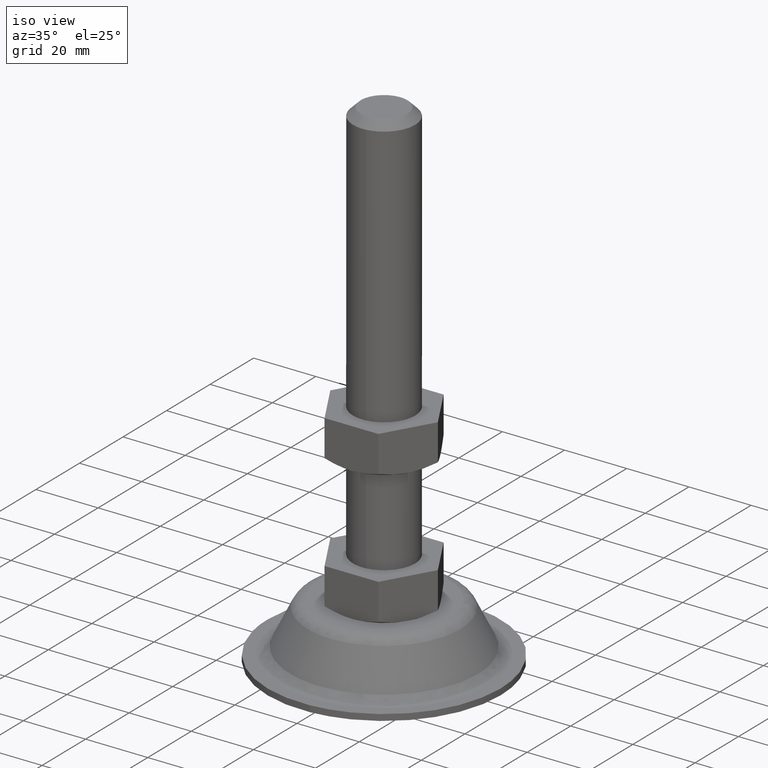
[diagram: clean part render]
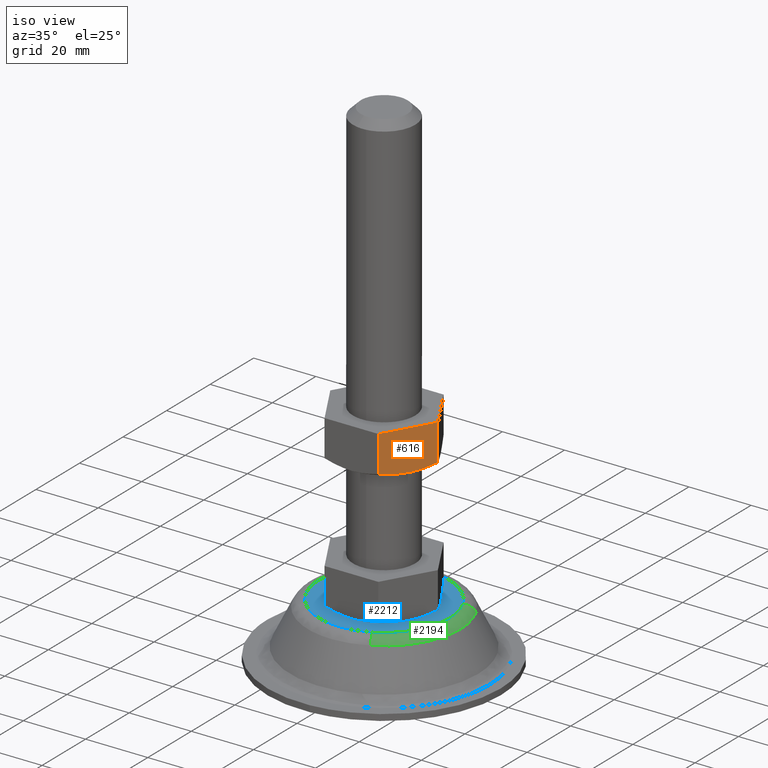
[diagram: same view with three faces highlighted in distinct colors, each labeled with its STEP entity id]
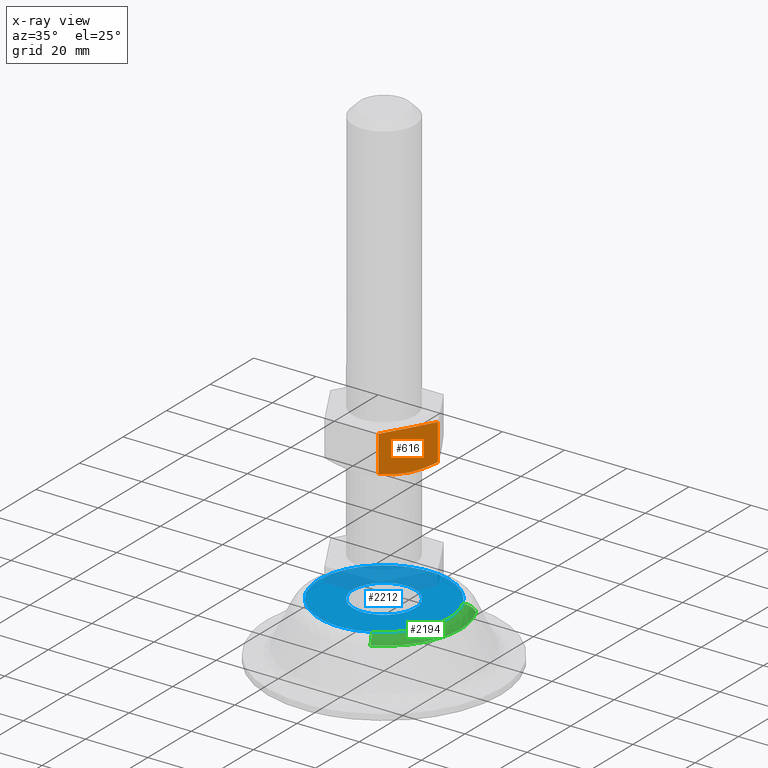
[diagram: x-ray of the same camera — body ghosted, the three highlighted faces saturated]
A machine part, iso view with three faces highlighted in distinct colors.
The next image is the same camera in x-ray (body ghosted, the three faces saturated) — at least one of them is partly hidden behind the body in this view.
Their STEP definitions:

[orange] entity #616 — the highlighted face is a freeform B-spline surface patch.
#140=CARTESIAN_POINT('',(17.300000000000001,-5.809094E-016,62.339745951231102));
#141=VERTEX_POINT('',#140);
#163=CARTESIAN_POINT('',(13.338581102288110,-6.861379078656141,61.011768809013986));
#164=VERTEX_POINT('',#163);
#165=CARTESIAN_POINT('',(13.338581102288110,-6.861379078656141,61.011768809013986));
#166=CARTESIAN_POINT('',(13.397354962315241,-6.759579518715170,61.015059326108997));
#167=CARTESIAN_POINT('',(13.456091402132120,-6.657845020252039,61.019142851758083));
#168=CARTESIAN_POINT('',(13.698904168786330,-6.237280969842774,61.039291775102221));
#169=CARTESIAN_POINT('',(13.882431816609079,-5.919401757831059,61.062310992847841));
#170=CARTESIAN_POINT('',(14.431178601310810,-4.968944442084222,61.153576613393597));
#171=CARTESIAN_POINT('',(14.794557260691620,-4.339554138900038,61.244083217684413));
#172=CARTESIAN_POINT('',(15.878224604632850,-2.462587232488472,61.593839847269493));
#173=CARTESIAN_POINT('',(16.592069824133262,-1.226171038170609,61.931022273626631));
#174=CARTESIAN_POINT('',(17.300000000000001,-5.809094E-016,62.339745951231102));
#175=B_SPLINE_CURVE_WITH_KNOTS('',3,(#165,#166,#167,#168,#169,#170,#171,#172,#173,#174),.UNSPECIFIED.,.F.,.U.,(4,2,2,2,4),(0.542597772120075,0.562500000000000,0.625000000000000,0.750000000000000,1.0),.UNSPECIFIED.);
#176=EDGE_CURVE('',#164,#141,#175,.T.);
#226=CARTESIAN_POINT('',(8.639746000000001,-15.0,62.345671394023498));
#227=VERTEX_POINT('',#226);
#228=CARTESIAN_POINT('',(8.639746000000001,-15.0,62.345671394023498));
#229=CARTESIAN_POINT('',(9.346698966340197,-13.775521538386331,61.936786780818018));
#230=CARTESIAN_POINT('',(10.058822484335881,-12.542087418563151,61.599588998314907));
#231=CARTESIAN_POINT('',(11.138194585494009,-10.672560090915271,61.248891436497040));
#232=CARTESIAN_POINT('',(11.499854347525391,-10.046147005286279,61.157905752206368));
#233=CARTESIAN_POINT('',(12.227406586928540,-8.785989555972790,61.034618634017583));
#234=CARTESIAN_POINT('',(12.593302747371339,-8.152238813022072,61.002368263856532));
#235=CARTESIAN_POINT('',(13.053511370126760,-7.355134092845105,61.001408450569599));
#236=CARTESIAN_POINT('',(13.145694399844590,-7.195468401080483,61.003175605669902));
#237=CARTESIAN_POINT('',(13.271545779525029,-6.977487416318749,61.008274798689961));
#238=CARTESIAN_POINT('',(13.305069486354570,-6.919422652578204,61.009892972552493));
#239=CARTESIAN_POINT('',(13.338581102288110,-6.861379078656141,61.011768809013986));
#240=B_SPLINE_CURVE_WITH_KNOTS('',3,(#228,#229,#230,#231,#232,#233,#234,#235,#236,#237,#238,#239),.UNSPECIFIED.,.F.,.U.,(4,2,2,2,2,4),(0.0,0.250000000000000,0.375000000000000,0.500000000000000,0.531250000000000,0.542597772120075),.UNSPECIFIED.);
#241=EDGE_CURVE('',#227,#164,#240,.T.);
#520=CARTESIAN_POINT('',(8.639746000000001,-15.0,74.0));
#521=VERTEX_POINT('',#520);
#527=CARTESIAN_POINT('',(17.300000000000001,0.0,74.0));
#528=VERTEX_POINT('',#527);
#529=CARTESIAN_POINT('',(17.300000000000001,0.0,74.0));
#530=CARTESIAN_POINT('',(8.639746000000001,-15.0,74.0));
#531=QUASI_UNIFORM_CURVE('',1,(#529,#530),.UNSPECIFIED.,.F.,.U.);
#532=EDGE_CURVE('',#528,#521,#531,.T.);
#591=CARTESIAN_POINT('',(8.639746000000001,-15.0,74.0));
#592=CARTESIAN_POINT('',(8.639746000000001,-15.0,62.345671394023498));
#593=QUASI_UNIFORM_CURVE('',1,(#591,#592),.UNSPECIFIED.,.F.,.U.);
#594=EDGE_CURVE('',#521,#227,#593,.T.);
#600=CARTESIAN_POINT('',(8.207166279129453,-15.749250058145799,60.352484429921603));
#601=CARTESIAN_POINT('',(17.732579256298280,0.749249253483117,60.352484429921603));
#602=CARTESIAN_POINT('',(8.207166279129453,-15.749250058145799,74.649263054041953));
#603=CARTESIAN_POINT('',(17.732579256298280,0.749249253483117,74.649263054041953));
#604=B_SPLINE_SURFACE_WITH_KNOTS('',1,1,((#600,#602),(#601,#603)),.UNSPECIFIED.,.F.,.F.,.U.,(2,2),(2,2),(0.0,19.050826016775130),(0.0,14.296778624120360),.UNSPECIFIED.);
#605=ORIENTED_EDGE('',*,*,#594,.T.);
#606=ORIENTED_EDGE('',*,*,#241,.T.);
#607=ORIENTED_EDGE('',*,*,#176,.T.);
#608=CARTESIAN_POINT('',(17.300000000000001,0.0,74.0));
#609=CARTESIAN_POINT('',(17.300000000000001,-5.809094E-016,62.339745951231102));
#610=QUASI_UNIFORM_CURVE('',1,(#608,#609),.UNSPECIFIED.,.F.,.U.);
#611=EDGE_CURVE('',#528,#141,#610,.T.);
#612=ORIENTED_EDGE('',*,*,#611,.F.);
#613=ORIENTED_EDGE('',*,*,#532,.T.);
#614=EDGE_LOOP('',(#605,#606,#607,#612,#613));
#615=FACE_OUTER_BOUND('',#614,.T.);
#616=ADVANCED_FACE('',(#615),#604,.T.);

[blue] entity #2212 — the highlighted face is a freeform B-spline surface patch.
#741=CARTESIAN_POINT('',(-1.180342346694433,9.930095263621585,18.0));
#742=VERTEX_POINT('',#741);
#743=CARTESIAN_POINT('',(10.0,0.0,18.0));
#744=VERTEX_POINT('',#743);
#745=CARTESIAN_POINT('',(-1.180342346694433,9.930095263621585,18.0));
#746=CARTESIAN_POINT('',(-0.592241196647291,10.0,18.0));
#747=CARTESIAN_POINT('',(0.0,10.0,18.0));
#748=CARTESIAN_POINT('',(10.000000000000002,10.000000000000002,18.000000000000007));
#749=CARTESIAN_POINT('',(10.0,0.0,18.0));
#757=(BOUNDED_CURVE()B_SPLINE_CURVE(2,(#745,#746,#747,#748,#749),.UNSPECIFIED.,.F.,.U.)B_SPLINE_CURVE_WITH_KNOTS((3,2,3),(0.229562473511327,0.250000000000000,0.500000000000000),.UNSPECIFIED.)CURVE()GEOMETRIC_REPRESENTATION_ITEM()RATIONAL_B_SPLINE_CURVE((0.956026754179423,0.976055948328589,1.0,0.707106781186548,1.0))REPRESENTATION_ITEM(''));
#758=EDGE_CURVE('',#742,#744,#757,.T.);
#799=CARTESIAN_POINT('',(0.610485395544084,-9.981347984206710,18.0));
#800=VERTEX_POINT('',#799);
#806=CARTESIAN_POINT('',(10.0,0.0,18.0));
#807=CARTESIAN_POINT('',(10.0,-9.407060668687699,18.000000000000007));
#808=CARTESIAN_POINT('',(0.610485395544084,-9.981347984206710,18.000000000000004));
#816=(BOUNDED_CURVE()B_SPLINE_CURVE(2,(#806,#807,#808),.UNSPECIFIED.,.F.,.U.)B_SPLINE_CURVE_WITH_KNOTS((3,3),(0.500000000000000,0.739332962235208),.UNSPECIFIED.)CURVE()GEOMETRIC_REPRESENTATION_ITEM()RATIONAL_B_SPLINE_CURVE((1.0,0.719603993291086,0.976072041658713))REPRESENTATION_ITEM(''));
#817=EDGE_CURVE('',#744,#800,#816,.T.);
#840=CARTESIAN_POINT('',(-10.0,0.0,18.0));
#841=VERTEX_POINT('',#840);
#842=CARTESIAN_POINT('',(-10.0,0.0,18.0));
#843=CARTESIAN_POINT('',(-9.999999999999998,8.881745259285166,18.000000000000004));
#844=CARTESIAN_POINT('',(-1.180342346694433,9.930095263621585,17.999999999999996));
#852=(BOUNDED_CURVE()B_SPLINE_CURVE(2,(#842,#843,#844),.UNSPECIFIED.,.F.,.U.)B_SPLINE_CURVE_WITH_KNOTS((3,3),(0.0,0.229562473511327),.UNSPECIFIED.)CURVE()GEOMETRIC_REPRESENTATION_ITEM()RATIONAL_B_SPLINE_CURVE((1.0,0.731050832857959,0.956026754179423))REPRESENTATION_ITEM(''));
#853=EDGE_CURVE('',#841,#742,#852,.T.);
#855=CARTESIAN_POINT('',(0.610485395544084,-9.981347984206710,18.0));
#856=CARTESIAN_POINT('',(0.305527633181951,-9.999999999999998,17.999999999999996));
#857=CARTESIAN_POINT('',(0.0,-10.0,18.0));
#858=CARTESIAN_POINT('',(-10.000000000000002,-10.000000000000002,18.000000000000007));
#859=CARTESIAN_POINT('',(-10.0,0.0,18.0));
#867=(BOUNDED_CURVE()B_SPLINE_CURVE(2,(#855,#856,#857,#858,#859),.UNSPECIFIED.,.F.,.U.)B_SPLINE_CURVE_WITH_KNOTS((3,2,3),(0.739332962235209,0.750000000000000,1.0),.UNSPECIFIED.)CURVE()GEOMETRIC_REPRESENTATION_ITEM()RATIONAL_B_SPLINE_CURVE((0.976072041658715,0.987502787895462,1.0,0.707106781186548,1.0))REPRESENTATION_ITEM(''));
#868=EDGE_CURVE('',#800,#841,#867,.T.);
#2074=CARTESIAN_POINT('',(9.388559233720365,-18.715872616396350,18.000000000000099));
#2075=VERTEX_POINT('',#2074);
#2076=CARTESIAN_POINT('',(-20.938694608125552,0.0,18.0));
#2077=VERTEX_POINT('',#2076);
#2078=CARTESIAN_POINT('',(9.388559233720365,-18.715872616396350,18.000000000000099));
#2079=CARTESIAN_POINT('',(4.957415710968405,-20.938694608125545,18.000000000000011));
#2080=CARTESIAN_POINT('',(0.0,-20.938694608125552,18.0));
#2081=CARTESIAN_POINT('',(-20.938694608125555,-20.938694608125555,18.000000000000007));
#2082=CARTESIAN_POINT('',(-20.938694608125552,0.0,18.0));
#2090=(BOUNDED_CURVE()B_SPLINE_CURVE(2,(#2078,#2079,#2080,#2081,#2082),.UNSPECIFIED.,.F.,.U.)B_SPLINE_CURVE_WITH_KNOTS((3,2,3),(0.673769062107955,0.750000000000000,1.0),.UNSPECIFIED.)CURVE()GEOMETRIC_REPRESENTATION_ITEM()RATIONAL_B_SPLINE_CURVE((0.875845342755623,0.910689900910522,1.0,0.707106781186548,1.0))REPRESENTATION_ITEM(''));
#2091=EDGE_CURVE('',#2075,#2077,#2090,.T.);
#2093=CARTESIAN_POINT('',(18.715872616023500,9.388559233505411,18.000000000000099));
#2094=VERTEX_POINT('',#2093);
#2095=CARTESIAN_POINT('',(-20.938694608125552,0.0,18.0));
#2096=CARTESIAN_POINT('',(-20.938694608125555,20.938694608125555,18.000000000000007));
#2097=CARTESIAN_POINT('',(0.0,20.938694608125552,18.0));
#2098=CARTESIAN_POINT('',(12.921906577954934,20.938694608125548,18.000000000000011));
#2099=CARTESIAN_POINT('',(18.715872616023496,9.388559233505411,18.000000000000099));
#2107=(BOUNDED_CURVE()B_SPLINE_CURVE(2,(#2095,#2096,#2097,#2098,#2099),.UNSPECIFIED.,.F.,.U.)B_SPLINE_CURVE_WITH_KNOTS((3,2,3),(0.0,0.250000000000000,0.423769062108323),.UNSPECIFIED.)CURVE()GEOMETRIC_REPRESENTATION_ITEM()RATIONAL_B_SPLINE_CURVE((1.0,0.707106781186548,1.0,0.796416880275594,0.875845342755960))REPRESENTATION_ITEM(''));
#2108=EDGE_CURVE('',#2077,#2094,#2107,.T.);
#2160=CARTESIAN_POINT('',(20.938694608125552,0.0,18.0));
#2161=VERTEX_POINT('',#2160);
#2162=CARTESIAN_POINT('',(20.938694608125552,0.0,18.0));
#2163=CARTESIAN_POINT('',(20.938694608125548,-12.921906577920389,18.000000000000004));
#2164=CARTESIAN_POINT('',(9.388559233720365,-18.715872616396346,18.000000000000107));
#2172=(BOUNDED_CURVE()B_SPLINE_CURVE(2,(#2162,#2163,#2164),.UNSPECIFIED.,.F.,.U.)B_SPLINE_CURVE_WITH_KNOTS((3,3),(0.500000000000000,0.673769062107954),.UNSPECIFIED.)CURVE()GEOMETRIC_REPRESENTATION_ITEM()RATIONAL_B_SPLINE_CURVE((1.0,0.796416880276027,0.875845342755622))REPRESENTATION_ITEM(''));
#2173=EDGE_CURVE('',#2161,#2075,#2172,.T.);
#2179=CARTESIAN_POINT('',(18.715872616023493,9.388559233505411,18.000000000000103));
#2180=CARTESIAN_POINT('',(20.938694608125555,4.957415710942052,18.000000000000004));
#2181=CARTESIAN_POINT('',(20.938694608125552,0.0,18.0));
#2189=(BOUNDED_CURVE()B_SPLINE_CURVE(2,(#2179,#2180,#2181),.UNSPECIFIED.,.F.,.U.)B_SPLINE_CURVE_WITH_KNOTS((3,3),(0.423769062108324,0.500000000000000),.UNSPECIFIED.)CURVE()GEOMETRIC_REPRESENTATION_ITEM()RATIONAL_B_SPLINE_CURVE((0.875845342755960,0.910689900910954,1.0))REPRESENTATION_ITEM(''));
#2190=EDGE_CURVE('',#2094,#2161,#2189,.T.);
#2195=CARTESIAN_POINT('',(-23.030469575580369,-23.028712848525242,18.0));
#2196=CARTESIAN_POINT('',(23.030468077928219,-23.028712848525242,18.0));
#2197=CARTESIAN_POINT('',(-23.030469575580369,23.016810248588751,18.0));
#2198=CARTESIAN_POINT('',(23.030468077928219,23.016810248588751,18.0));
#2199=B_SPLINE_SURFACE_WITH_KNOTS('',1,1,((#2195,#2197),(#2196,#2198)),.UNSPECIFIED.,.F.,.F.,.U.,(2,2),(2,2),(0.0,46.060937653508589),(0.0,46.045523097113993),.UNSPECIFIED.);
#2200=ORIENTED_EDGE('',*,*,#2091,.F.);
#2201=ORIENTED_EDGE('',*,*,#2173,.F.);
#2202=ORIENTED_EDGE('',*,*,#2190,.F.);
#2203=ORIENTED_EDGE('',*,*,#2108,.F.);
#2204=EDGE_LOOP('',(#2200,#2201,#2202,#2203));
#2205=FACE_OUTER_BOUND('',#2204,.T.);
#2206=ORIENTED_EDGE('',*,*,#817,.T.);
#2207=ORIENTED_EDGE('',*,*,#868,.T.);
#2208=ORIENTED_EDGE('',*,*,#853,.T.);
#2209=ORIENTED_EDGE('',*,*,#758,.T.);
#2210=EDGE_LOOP('',(#2206,#2207,#2208,#2209));
#2211=FACE_BOUND('',#2210,.T.);
#2212=ADVANCED_FACE('',(#2205,#2211),#2199,.T.);

[green] entity #2194 — the highlighted face is a freeform B-spline surface patch.
#1387=CARTESIAN_POINT('',(21.925249911059961,10.998499066044729,15.762949531500899));
#1388=VERTEX_POINT('',#1387);
#1402=CARTESIAN_POINT('',(24.529238988803549,0.0,15.762949531433700));
#1403=VERTEX_POINT('',#1402);
#1404=CARTESIAN_POINT('',(21.925249911059964,10.998499066044726,15.762949531500906));
#1405=CARTESIAN_POINT('',(24.529238988803552,5.807507917940813,15.762949531433705));
#1406=CARTESIAN_POINT('',(24.529238988803549,0.0,15.762949531433700));
#1414=(BOUNDED_CURVE()B_SPLINE_CURVE(2,(#1404,#1405,#1406),.UNSPECIFIED.,.F.,.U.)B_SPLINE_CURVE_WITH_KNOTS((3,3),(0.423769062115468,0.500000000000000),.UNSPECIFIED.)CURVE()GEOMETRIC_REPRESENTATION_ITEM()RATIONAL_B_SPLINE_CURVE((0.875845342762491,0.910689900919324,1.0))REPRESENTATION_ITEM(''));
#1415=EDGE_CURVE('',#1388,#1403,#1414,.T.);
#1417=CARTESIAN_POINT('',(10.998499066039679,-21.925249911026910,15.762949531565670));
#1418=VERTEX_POINT('',#1417);
#1419=CARTESIAN_POINT('',(24.529238988803549,0.0,15.762949531433700));
#1420=CARTESIAN_POINT('',(24.529238988803556,-15.137740942776292,15.762949531433710));
#1421=CARTESIAN_POINT('',(10.998499066039679,-21.925249911026910,15.762949531565672));
#1429=(BOUNDED_CURVE()B_SPLINE_CURVE(2,(#1419,#1420,#1421),.UNSPECIFIED.,.F.,.U.)B_SPLINE_CURVE_WITH_KNOTS((3,3),(0.500000000000000,0.673769062115336),.UNSPECIFIED.)CURVE()GEOMETRIC_REPRESENTATION_ITEM()RATIONAL_B_SPLINE_CURVE((1.0,0.796416880267377,0.875845342762371))REPRESENTATION_ITEM(''));
#1430=EDGE_CURVE('',#1403,#1418,#1429,.T.);
#2074=CARTESIAN_POINT('',(9.388559233720365,-18.715872616396350,18.000000000000099));
#2075=VERTEX_POINT('',#2074);
#2093=CARTESIAN_POINT('',(18.715872616023500,9.388559233505411,18.000000000000099));
#2094=VERTEX_POINT('',#2093);
#2110=CARTESIAN_POINT('',(18.715872616023496,9.388559233505411,18.000000000000096));
#2111=CARTESIAN_POINT('',(20.943466164081698,10.506000797222542,17.999999989052817));
#2112=CARTESIAN_POINT('',(21.925249911059961,10.998499066044726,15.762949531500904));
#2120=(BOUNDED_CURVE()B_SPLINE_CURVE(2,(#2110,#2111,#2112),.UNSPECIFIED.,.F.,.U.)B_SPLINE_CURVE_WITH_KNOTS((3,3),(-1.657824825603967,-0.347170207494934),.UNSPECIFIED.)CURVE()GEOMETRIC_REPRESENTATION_ITEM()RATIONAL_B_SPLINE_CURVE((0.909224136844491,0.771255055557697,0.908176502123469))REPRESENTATION_ITEM(''));
#2121=EDGE_CURVE('',#2094,#1388,#2120,.T.);
#2127=CARTESIAN_POINT('',(9.388559233720365,-18.715872616396350,18.000000000000099));
#2128=CARTESIAN_POINT('',(10.506000797295503,-20.943466164227132,17.999999988517445));
#2129=CARTESIAN_POINT('',(10.998499066039679,-21.925249911026917,15.762949531565667));
#2137=(BOUNDED_CURVE()B_SPLINE_CURVE(2,(#2127,#2128,#2129),.UNSPECIFIED.,.F.,.U.)B_SPLINE_CURVE_WITH_KNOTS((3,3),(-1.657824825337588,-0.347170207539613),.UNSPECIFIED.)CURVE()GEOMETRIC_REPRESENTATION_ITEM()RATIONAL_B_SPLINE_CURVE((0.909224136788408,0.771255055590228,0.908176502114134))REPRESENTATION_ITEM(''));
#2138=EDGE_CURVE('',#2075,#1418,#2137,.T.);
#2143=CARTESIAN_POINT('',(18.528652608911848,9.294642899871809,17.994512284984971));
#2144=CARTESIAN_POINT('',(27.823295508783655,-9.234009709040036,17.994512284984971));
#2145=CARTESIAN_POINT('',(9.294642899871809,-18.528652608911848,17.994512284984971));
#2146=CARTESIAN_POINT('',(21.022028934068988,10.545410726679879,18.140782316382250));
#2147=CARTESIAN_POINT('',(31.567439660748860,-10.476618207389112,18.140782316382243));
#2148=CARTESIAN_POINT('',(10.545410726679879,-21.022028934068988,18.140782316382250));
#2149=CARTESIAN_POINT('',(22.003449988207599,11.037727055620422,15.572285105118571));
#2150=CARTESIAN_POINT('',(33.041177043828014,-10.965722932587171,15.572285105118565));
#2151=CARTESIAN_POINT('',(11.037727055620422,-22.003449988207585,15.572285105118571));
#2159=(BOUNDED_SURFACE()B_SPLINE_SURFACE(2,2,((#2143,#2146,#2149),(#2144,#2147,#2150),(#2145,#2148,#2151)),.UNSPECIFIED.,.F.,.F.,.U.)B_SPLINE_SURFACE_WITH_KNOTS((3,3),(3,3),(0.0,40.786328124221413),(0.0,5.033719259317198),.UNSPECIFIED.)GEOMETRIC_REPRESENTATION_ITEM()RATIONAL_B_SPLINE_SURFACE(((0.923693141034011,0.756838403288658,0.922540802781788),(0.653149683760651,0.535165567227809,0.652334857568283),(0.923693141034011,0.756838403288658,0.922540802781788)))REPRESENTATION_ITEM('')SURFACE());
#2160=CARTESIAN_POINT('',(20.938694608125552,0.0,18.0));
#2161=VERTEX_POINT('',#2160);
#2162=CARTESIAN_POINT('',(20.938694608125552,0.0,18.0));
#2163=CARTESIAN_POINT('',(20.938694608125548,-12.921906577920389,18.000000000000004));
#2164=CARTESIAN_POINT('',(9.388559233720365,-18.715872616396346,18.000000000000107));
#2172=(BOUNDED_CURVE()B_SPLINE_CURVE(2,(#2162,#2163,#2164),.UNSPECIFIED.,.F.,.U.)B_SPLINE_CURVE_WITH_KNOTS((3,3),(0.500000000000000,0.673769062107954),.UNSPECIFIED.)CURVE()GEOMETRIC_REPRESENTATION_ITEM()RATIONAL_B_SPLINE_CURVE((1.0,0.796416880276027,0.875845342755622))REPRESENTATION_ITEM(''));
#2173=EDGE_CURVE('',#2161,#2075,#2172,.T.);
#2174=ORIENTED_EDGE('',*,*,#2173,.T.);
#2175=ORIENTED_EDGE('',*,*,#2138,.T.);
#2176=ORIENTED_EDGE('',*,*,#1430,.F.);
#2177=ORIENTED_EDGE('',*,*,#1415,.F.);
#2178=ORIENTED_EDGE('',*,*,#2121,.F.);
#2179=CARTESIAN_POINT('',(18.715872616023493,9.388559233505411,18.000000000000103));
#2180=CARTESIAN_POINT('',(20.938694608125555,4.957415710942052,18.000000000000004));
#2181=CARTESIAN_POINT('',(20.938694608125552,0.0,18.0));
#2189=(BOUNDED_CURVE()B_SPLINE_CURVE(2,(#2179,#2180,#2181),.UNSPECIFIED.,.F.,.U.)B_SPLINE_CURVE_WITH_KNOTS((3,3),(0.423769062108324,0.500000000000000),.UNSPECIFIED.)CURVE()GEOMETRIC_REPRESENTATION_ITEM()RATIONAL_B_SPLINE_CURVE((0.875845342755960,0.910689900910954,1.0))REPRESENTATION_ITEM(''));
#2190=EDGE_CURVE('',#2094,#2161,#2189,.T.);
#2191=ORIENTED_EDGE('',*,*,#2190,.T.);
#2192=EDGE_LOOP('',(#2174,#2175,#2176,#2177,#2178,#2191));
#2193=FACE_OUTER_BOUND('',#2192,.T.);
#2194=ADVANCED_FACE('',(#2193),#2159,.T.);